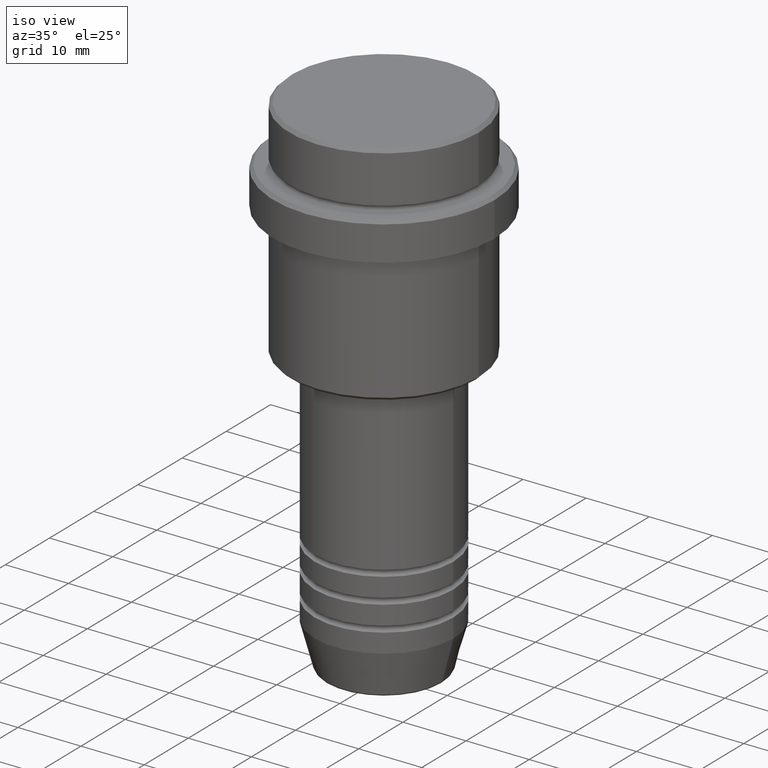
[diagram: clean part render]
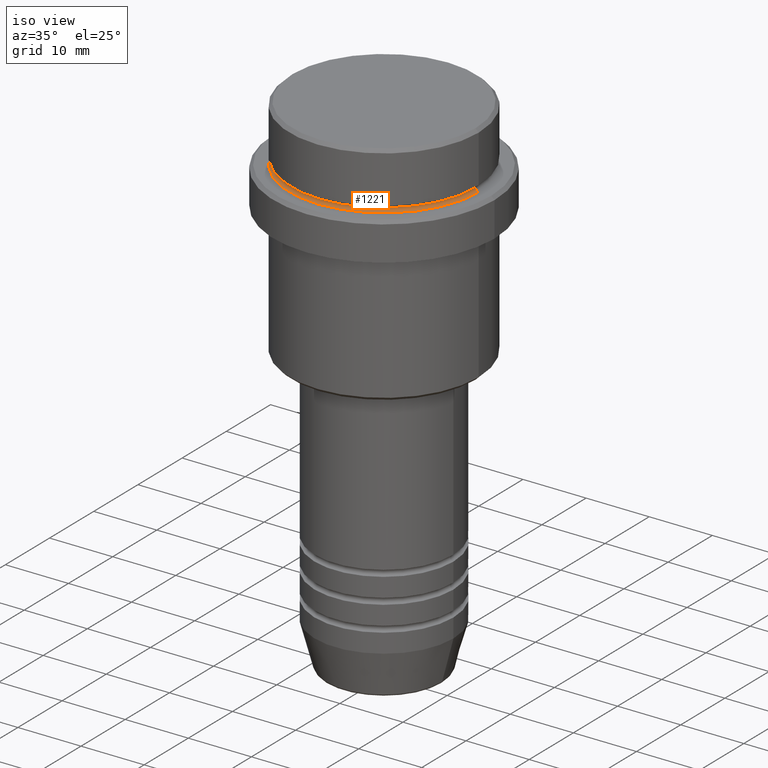
[diagram: same view with one face highlighted and labeled with its STEP entity id]
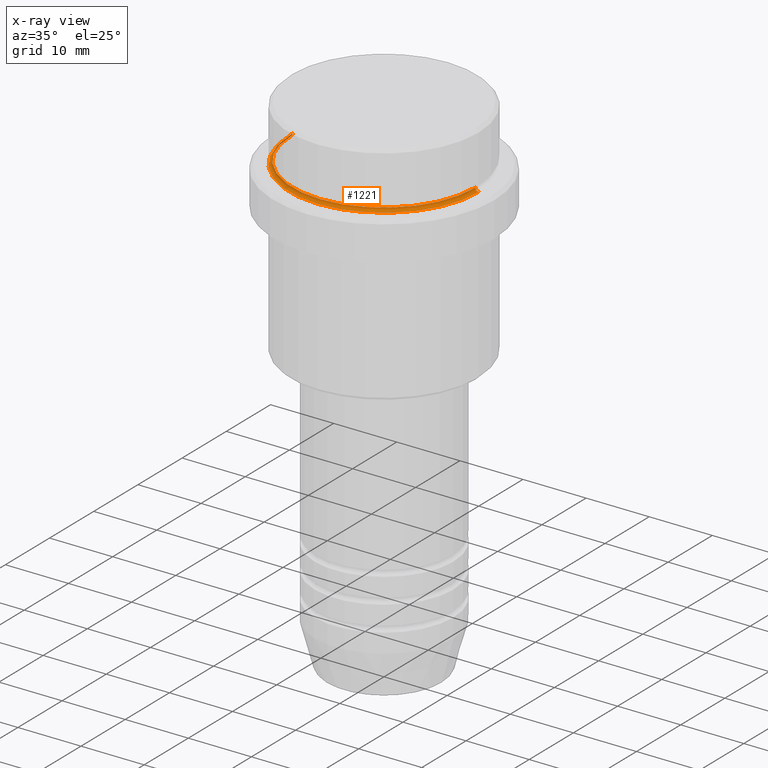
[diagram: x-ray of the same camera — body ghosted, the highlighted face saturated]
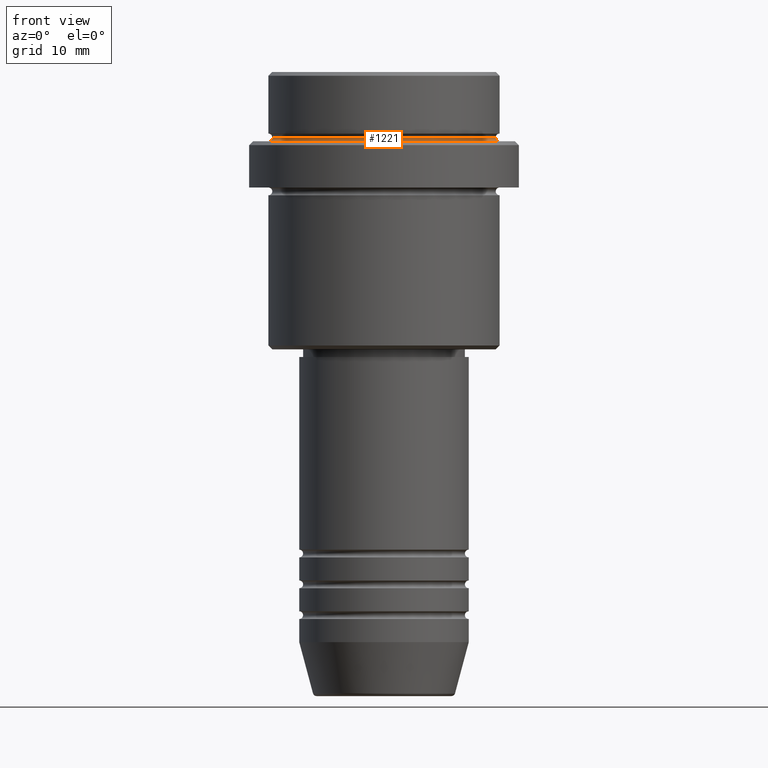
[diagram: same view with one face highlighted and labeled with its STEP entity id]
A machine part, iso view. The second image highlights one B-rep face of the part: STEP entity #1221.
The next image is the same camera in x-ray: the body ghosted, the highlighted face saturated — about 2% of this face is hidden behind the body in this view.
A second angle (front view) of the same face is appended — the face is thin or edge-on in the first view.
In plain terms, the highlighted toroidal blend (fillet) surface has major radius 15 mm and minor (blend) radius 0.5 mm.
Its self-contained STEP definition (entity closure, byte-faithful):
#11 = EDGE_CURVE ( 'NONE', #85, #211, #654, .T. ) ;
#18 = DIRECTION ( 'NONE',  ( 0.000000000000000000, 0.000000000000000000, -1.000000000000000000 ) ) ;
#29 = CARTESIAN_POINT ( 'NONE',  ( -14.99999999999999289, 1.836970198721028800E-15, -8.499999999999998224 ) ) ;
#40 = TOROIDAL_SURFACE ( 'NONE', #953, 14.99999999999999289, 0.5000000000000000000 ) ;
#49 = DIRECTION ( 'NONE',  ( 1.000000000000000000, 0.000000000000000000, 0.000000000000000000 ) ) ;
#85 = VERTEX_POINT ( 'NONE', #1099 ) ;
#125 = EDGE_CURVE ( 'NONE', #85, #992, #234, .T. ) ;
#166 = ORIENTED_EDGE ( 'NONE', *, *, #11, .F. ) ;
#200 = EDGE_CURVE ( 'NONE', #211, #1190, #999, .T. ) ;
#208 = CARTESIAN_POINT ( 'NONE',  ( 0.000000000000000000, 0.000000000000000000, -8.499999999999998224 ) ) ;
#211 = VERTEX_POINT ( 'NONE', #1125 ) ;
#226 = DIRECTION ( 'NONE',  ( 1.000000000000000000, 0.000000000000000000, 0.000000000000000000 ) ) ;
#228 = DIRECTION ( 'NONE',  ( -1.000000000000000000, 1.224646799147349509E-16, 0.000000000000000000 ) ) ;
#234 = CIRCLE ( 'NONE', #1227, 0.5000000000000004441 ) ;
#235 = ORIENTED_EDGE ( 'NONE', *, *, #125, .T. ) ;
#273 = CARTESIAN_POINT ( 'NONE',  ( -14.99999999999999289, 1.836970198721028800E-15, -9.000000000000000000 ) ) ;
#359 = CIRCLE ( 'NONE', #1062, 14.99999999999999289 ) ;
#477 = DIRECTION ( 'NONE',  ( 0.000000000000000000, 0.000000000000000000, -1.000000000000000000 ) ) ;
#527 = DIRECTION ( 'NONE',  ( 1.000000000000000000, 0.000000000000000000, 0.000000000000000000 ) ) ;
#576 = DIRECTION ( 'NONE',  ( -0.000000000000000000, -0.000000000000000000, 1.000000000000000000 ) ) ;
#610 = ORIENTED_EDGE ( 'NONE', *, *, #200, .F. ) ;
#629 = AXIS2_PLACEMENT_3D ( 'NONE', #1348, #991, #477 ) ;
#654 = CIRCLE ( 'NONE', #1020, 14.49999999999999289 ) ;
#688 = CARTESIAN_POINT ( 'NONE',  ( 0.000000000000000000, 0.000000000000000000, -8.499999999999998224 ) ) ;
#714 = ORIENTED_EDGE ( 'NONE', *, *, #825, .F. ) ;
#784 = FACE_OUTER_BOUND ( 'NONE', #949, .T. ) ;
#825 = EDGE_CURVE ( 'NONE', #1190, #992, #359, .T. ) ;
#949 = EDGE_LOOP ( 'NONE', ( #166, #235, #714, #610 ) ) ;
#953 = AXIS2_PLACEMENT_3D ( 'NONE', #688, #576, #49 ) ;
#991 = DIRECTION ( 'NONE',  ( 0.000000000000000000, -1.000000000000000000, 0.000000000000000000 ) ) ;
#992 = VERTEX_POINT ( 'NONE', #273 ) ;
#999 = CIRCLE ( 'NONE', #629, 0.5000000000000004441 ) ;
#1011 = DIRECTION ( 'NONE',  ( 1.224646799147353207E-16, 1.000000000000000000, 0.000000000000000000 ) ) ;
#1020 = AXIS2_PLACEMENT_3D ( 'NONE', #208, #1285, #527 ) ;
#1062 = AXIS2_PLACEMENT_3D ( 'NONE', #1231, #18, #226 ) ;
#1099 = CARTESIAN_POINT ( 'NONE',  ( -14.49999999999999289, 1.806354028742345013E-15, -8.499999999999998224 ) ) ;
#1125 = CARTESIAN_POINT ( 'NONE',  ( 14.49999999999999289, 0.000000000000000000, -8.499999999999998224 ) ) ;
#1175 = CARTESIAN_POINT ( 'NONE',  ( 14.99999999999999289, 0.000000000000000000, -9.000000000000000000 ) ) ;
#1190 = VERTEX_POINT ( 'NONE', #1175 ) ;
#1221 = ADVANCED_FACE ( 'NONE', ( #784 ), #40, .F. ) ;
#1227 = AXIS2_PLACEMENT_3D ( 'NONE', #29, #1011, #228 ) ;
#1231 = CARTESIAN_POINT ( 'NONE',  ( 0.000000000000000000, 0.000000000000000000, -9.000000000000000000 ) ) ;
#1285 = DIRECTION ( 'NONE',  ( -0.000000000000000000, -0.000000000000000000, 1.000000000000000000 ) ) ;
#1348 = CARTESIAN_POINT ( 'NONE',  ( 14.99999999999999289, 0.000000000000000000, -8.499999999999998224 ) ) ;